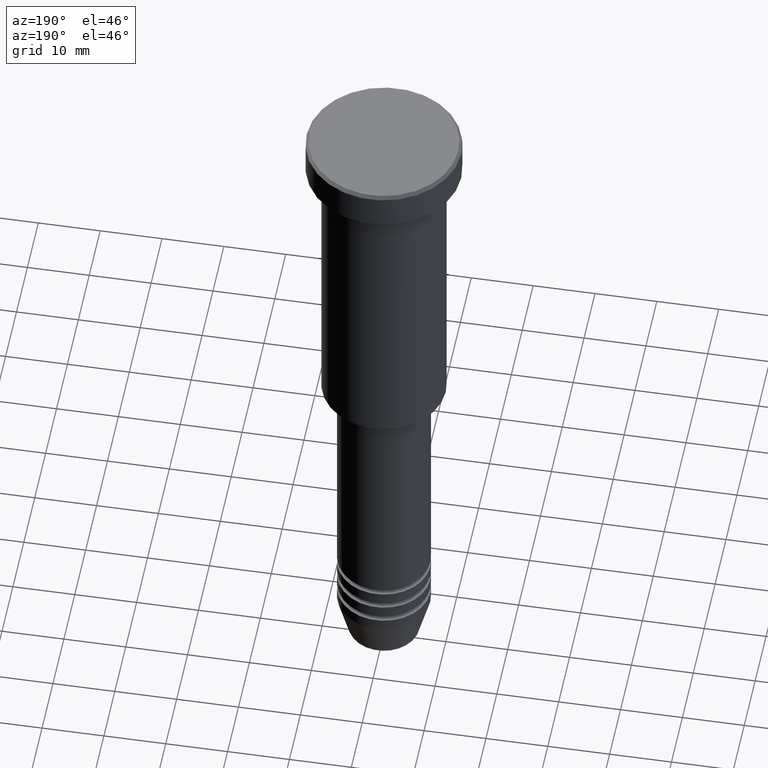
[diagram: clean part render]
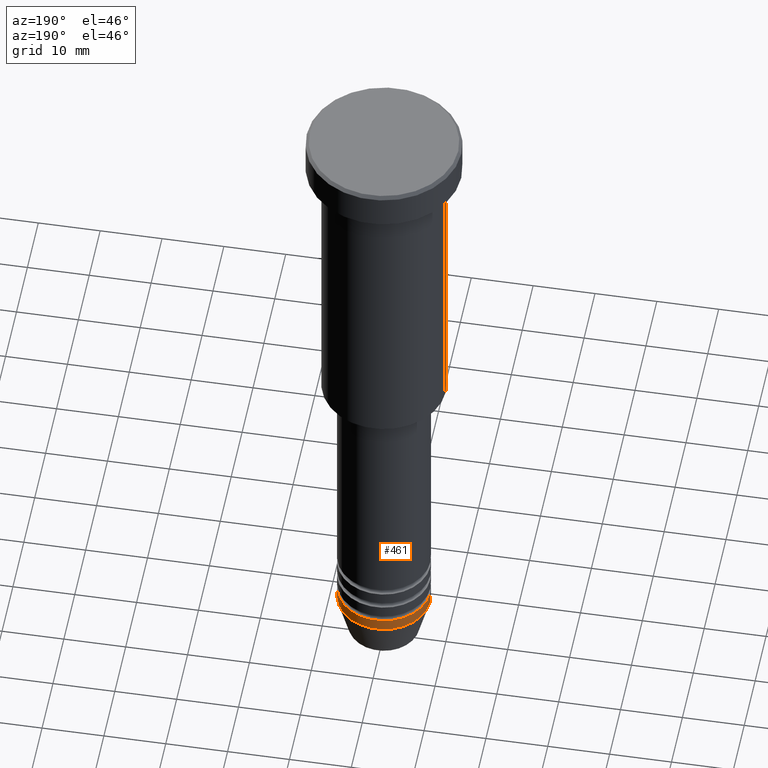
[diagram: same view with one face highlighted and labeled with its STEP entity id]
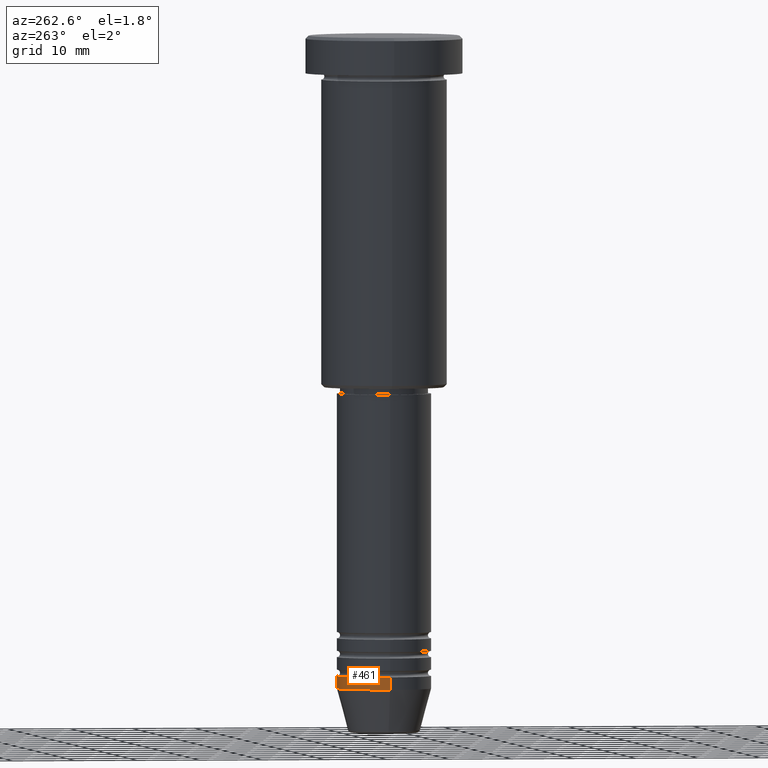
[diagram: same view with one face highlighted and labeled with its STEP entity id]
A machine part, auxiliary view. The second image highlights one B-rep face of the part: STEP entity #461.
A second angle (auxiliary view) of the same face is appended — the face is thin or edge-on in the first view.
In plain terms, the highlighted cylindrical surface (partial cylindrical patch) has radius 7.5 mm, axis along (-0, -0, 1).
Its self-contained STEP definition (entity closure, byte-faithful):
#21 = AXIS2_PLACEMENT_3D ( 'NONE', #665, #651, #380 ) ;
#44 = DIRECTION ( 'NONE',  ( -0.000000000000000000, -0.000000000000000000, 1.000000000000000000 ) ) ;
#57 = FACE_OUTER_BOUND ( 'NONE', #1012, .T. ) ;
#78 = EDGE_CURVE ( 'NONE', #538, #540, #614, .T. ) ;
#134 = CARTESIAN_POINT ( 'NONE',  ( 0.000000000000000000, 0.000000000000000000, -104.0000000000000142 ) ) ;
#163 = CARTESIAN_POINT ( 'NONE',  ( -7.500000000000000000, 9.184850993605147944E-16, 0.000000000000000000 ) ) ;
#181 = VERTEX_POINT ( 'NONE', #445 ) ;
#213 = LINE ( 'NONE', #570, #869 ) ;
#253 = CARTESIAN_POINT ( 'NONE',  ( 0.000000000000000000, 0.000000000000000000, -102.0000000000000142 ) ) ;
#261 = CIRCLE ( 'NONE', #418, 7.500000000000000000 ) ;
#301 = CARTESIAN_POINT ( 'NONE',  ( -7.500000000000000000, 9.184850993605147944E-16, -104.0000000000000142 ) ) ;
#339 = DIRECTION ( 'NONE',  ( 1.000000000000000000, 0.000000000000000000, 0.000000000000000000 ) ) ;
#340 = CIRCLE ( 'NONE', #1077, 7.500000000000000000 ) ;
#347 = VERTEX_POINT ( 'NONE', #1020 ) ;
#380 = DIRECTION ( 'NONE',  ( 1.000000000000000000, 0.000000000000000000, 0.000000000000000000 ) ) ;
#417 = DIRECTION ( 'NONE',  ( 1.000000000000000000, 0.000000000000000000, 0.000000000000000000 ) ) ;
#418 = AXIS2_PLACEMENT_3D ( 'NONE', #253, #699, #339 ) ;
#445 = CARTESIAN_POINT ( 'NONE',  ( 7.500000000000000000, 0.000000000000000000, -104.0000000000000142 ) ) ;
#461 = ADVANCED_FACE ( 'NONE', ( #57 ), #764, .T. ) ;
#538 = VERTEX_POINT ( 'NONE', #301 ) ;
#540 = VERTEX_POINT ( 'NONE', #857 ) ;
#541 = DIRECTION ( 'NONE',  ( -0.000000000000000000, -0.000000000000000000, 1.000000000000000000 ) ) ;
#570 = CARTESIAN_POINT ( 'NONE',  ( 7.500000000000000000, 0.000000000000000000, 0.000000000000000000 ) ) ;
#614 = LINE ( 'NONE', #163, #718 ) ;
#651 = DIRECTION ( 'NONE',  ( -0.000000000000000000, -0.000000000000000000, 1.000000000000000000 ) ) ;
#665 = CARTESIAN_POINT ( 'NONE',  ( 0.000000000000000000, 0.000000000000000000, 0.000000000000000000 ) ) ;
#699 = DIRECTION ( 'NONE',  ( -0.000000000000000000, -0.000000000000000000, 1.000000000000000000 ) ) ;
#718 = VECTOR ( 'NONE', #541, 1000.000000000000000 ) ;
#764 = CYLINDRICAL_SURFACE ( 'NONE', #21, 7.500000000000000000 ) ;
#846 = DIRECTION ( 'NONE',  ( -0.000000000000000000, -0.000000000000000000, 1.000000000000000000 ) ) ;
#857 = CARTESIAN_POINT ( 'NONE',  ( -7.500000000000000000, 9.184850993605147944E-16, -102.0000000000000142 ) ) ;
#869 = VECTOR ( 'NONE', #846, 1000.000000000000000 ) ;
#878 = ORIENTED_EDGE ( 'NONE', *, *, #965, .T. ) ;
#884 = ORIENTED_EDGE ( 'NONE', *, *, #964, .F. ) ;
#964 = EDGE_CURVE ( 'NONE', #347, #540, #261, .T. ) ;
#965 = EDGE_CURVE ( 'NONE', #181, #538, #340, .T. ) ;
#1005 = EDGE_CURVE ( 'NONE', #181, #347, #213, .T. ) ;
#1012 = EDGE_LOOP ( 'NONE', ( #878, #1030, #884, #1083 ) ) ;
#1020 = CARTESIAN_POINT ( 'NONE',  ( 7.500000000000000000, 0.000000000000000000, -102.0000000000000142 ) ) ;
#1030 = ORIENTED_EDGE ( 'NONE', *, *, #78, .T. ) ;
#1077 = AXIS2_PLACEMENT_3D ( 'NONE', #134, #44, #417 ) ;
#1083 = ORIENTED_EDGE ( 'NONE', *, *, #1005, .F. ) ;